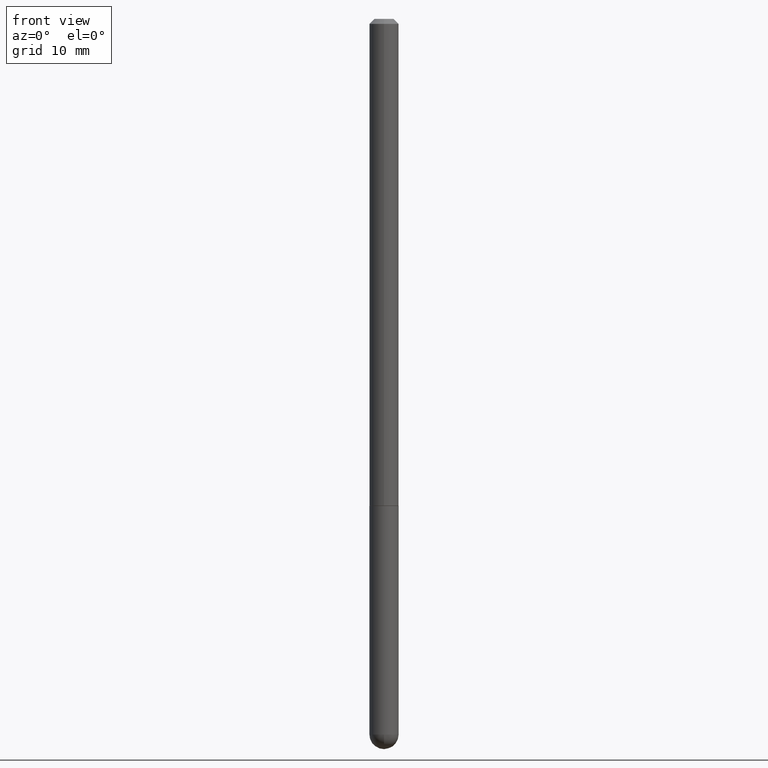
[diagram: clean part render]
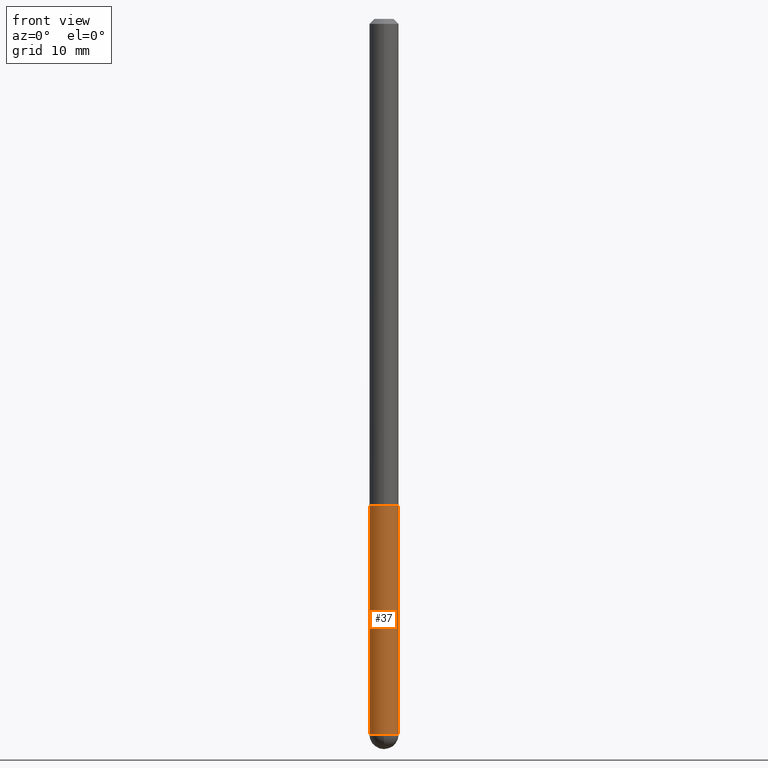
[diagram: same view with one face highlighted and labeled with its STEP entity id]
A machine part, front view. The second image highlights one B-rep face of the part: STEP entity #37.
In plain terms, the highlighted cylindrical surface (edge-blend (fillet) strip) has radius 1.4999 mm, axis along (-0, 0, 1).
Its self-contained STEP definition (entity closure, byte-faithful):
#8 = VERTEX_POINT ( 'NONE', #44 ) ;
#11 = VERTEX_POINT ( 'NONE', #263 ) ;
#17 = CARTESIAN_POINT ( 'NONE',  ( -0.05905000000000001914, -8.068652084428701697E-15, -2.893749999999999822 ) ) ;
#21 = DIRECTION ( 'NONE',  ( -2.445468806185136597E-29, 3.491481338843145583E-15, 1.000000000000000000 ) ) ;
#22 = AXIS2_PLACEMENT_3D ( 'NONE', #84, #59, #80 ) ;
#37 = ADVANCED_FACE ( 'NONE', ( #179 ), #118, .T. ) ;
#38 = VERTEX_POINT ( 'NONE', #173 ) ;
#43 = ORIENTED_EDGE ( 'NONE', *, *, #68, .T. ) ;
#44 = CARTESIAN_POINT ( 'NONE',  ( -0.05905000000000001914, -8.068652084428701697E-15, -1.968499999999999694 ) ) ;
#47 = ORIENTED_EDGE ( 'NONE', *, *, #190, .T. ) ;
#53 = DIRECTION ( 'NONE',  ( -2.445468806185136877E-29, 3.491481338843145188E-15, 1.000000000000000000 ) ) ;
#56 = DIRECTION ( 'NONE',  ( 1.000000000000000000, -6.982962677686270655E-15, 0.000000000000000000 ) ) ;
#59 = DIRECTION ( 'NONE',  ( -2.445468806185136597E-29, 3.491481338843145583E-15, 1.000000000000000000 ) ) ;
#63 = AXIS2_PLACEMENT_3D ( 'NONE', #115, #269, #402 ) ;
#67 = AXIS2_PLACEMENT_3D ( 'NONE', #310, #182, #274 ) ;
#68 = EDGE_CURVE ( 'NONE', #38, #138, #124, .T. ) ;
#80 = DIRECTION ( 'NONE',  ( 1.000000000000000000, -6.982962677686270655E-15, 0.000000000000000000 ) ) ;
#84 = CARTESIAN_POINT ( 'NONE',  ( 7.076575357898237682E-29, -1.010347412427735067E-14, -2.893749999999999822 ) ) ;
#85 = DIRECTION ( 'NONE',  ( -2.445468806185136877E-29, 3.491481338843145188E-15, 1.000000000000000000 ) ) ;
#93 = AXIS2_PLACEMENT_3D ( 'NONE', #237, #21, #56 ) ;
#98 = EDGE_CURVE ( 'NONE', #138, #11, #168, .T. ) ;
#101 = EDGE_LOOP ( 'NONE', ( #198, #47, #43, #161, #325 ) ) ;
#102 = CARTESIAN_POINT ( 'NONE',  ( 0.05905000000000001914, -8.900571516012416899E-15, -2.893749999999999822 ) ) ;
#112 = CARTESIAN_POINT ( 'NONE',  ( 0.05905000000000001914, -4.123439461173741806E-16, 2.879382386107500921E-30 ) ) ;
#115 = CARTESIAN_POINT ( 'NONE',  ( 7.076575357898237682E-29, -1.010347412427735067E-14, -2.893749999999999822 ) ) ;
#116 = LINE ( 'NONE', #308, #314 ) ;
#118 = CYLINDRICAL_SURFACE ( 'NONE', #67, 0.05905000000000001914 ) ;
#124 = CIRCLE ( 'NONE', #63, 0.05905000000000001914 ) ;
#138 = VERTEX_POINT ( 'NONE', #102 ) ;
#161 = ORIENTED_EDGE ( 'NONE', *, *, #98, .T. ) ;
#168 = LINE ( 'NONE', #112, #251 ) ;
#173 = CARTESIAN_POINT ( 'NONE',  ( -4.195754854662709114E-16, -0.05905000000001047605, -2.893749999999999822 ) ) ;
#179 = FACE_OUTER_BOUND ( 'NONE', #101, .T. ) ;
#182 = DIRECTION ( 'NONE',  ( -2.445468806185136597E-29, 3.491481338843145583E-15, 1.000000000000000000 ) ) ;
#190 = EDGE_CURVE ( 'NONE', #332, #38, #197, .T. ) ;
#197 = CIRCLE ( 'NONE', #22, 0.05905000000000001914 ) ;
#198 = ORIENTED_EDGE ( 'NONE', *, *, #288, .F. ) ;
#237 = CARTESIAN_POINT ( 'NONE',  ( 4.813905344975440714E-29, -6.872981015512730918E-15, -1.968499999999999694 ) ) ;
#251 = VECTOR ( 'NONE', #53, 39.37007874015748143 ) ;
#252 = CIRCLE ( 'NONE', #93, 0.05905000000000001914 ) ;
#263 = CARTESIAN_POINT ( 'NONE',  ( 0.05905000000000001914, -7.285324961630105839E-15, -1.968499999999999694 ) ) ;
#269 = DIRECTION ( 'NONE',  ( -2.445468806185136597E-29, 3.491481338843145583E-15, 1.000000000000000000 ) ) ;
#274 = DIRECTION ( 'NONE',  ( 1.000000000000000000, -6.982962677686266711E-15, 4.876176775795935793E-29 ) ) ;
#288 = EDGE_CURVE ( 'NONE', #332, #8, #116, .T. ) ;
#308 = CARTESIAN_POINT ( 'NONE',  ( -0.05905000000000001914, 4.195754854663392958E-16, -2.904631170795522943E-30 ) ) ;
#310 = CARTESIAN_POINT ( 'NONE',  ( 0.000000000000000000, 0.000000000000000000, 0.000000000000000000 ) ) ;
#314 = VECTOR ( 'NONE', #85, 39.37007874015748143 ) ;
#325 = ORIENTED_EDGE ( 'NONE', *, *, #369, .F. ) ;
#332 = VERTEX_POINT ( 'NONE', #17 ) ;
#369 = EDGE_CURVE ( 'NONE', #8, #11, #252, .T. ) ;
#402 = DIRECTION ( 'NONE',  ( 1.000000000000000000, -6.982962677686270655E-15, 0.000000000000000000 ) ) ;